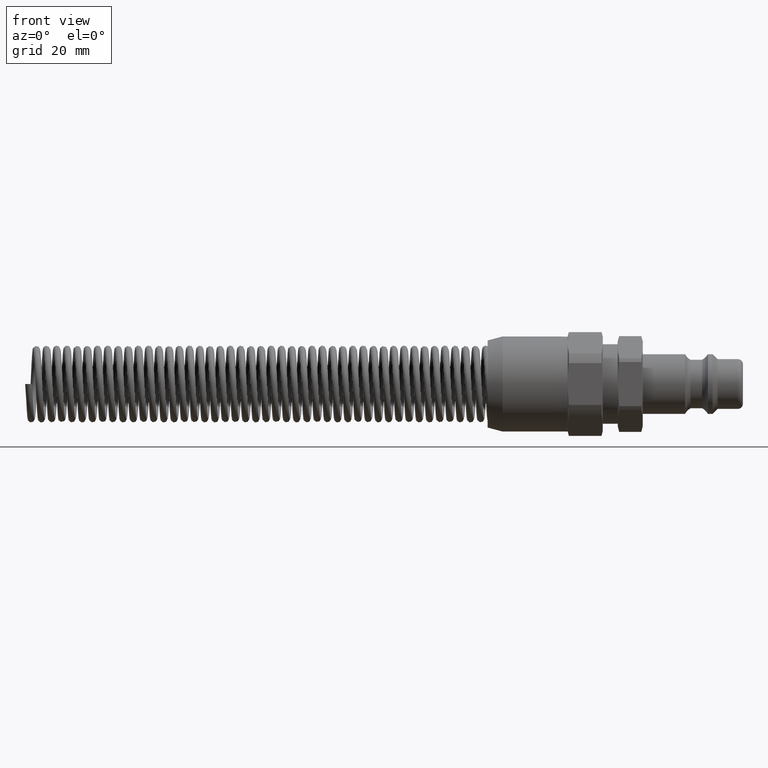
[diagram: clean part render]
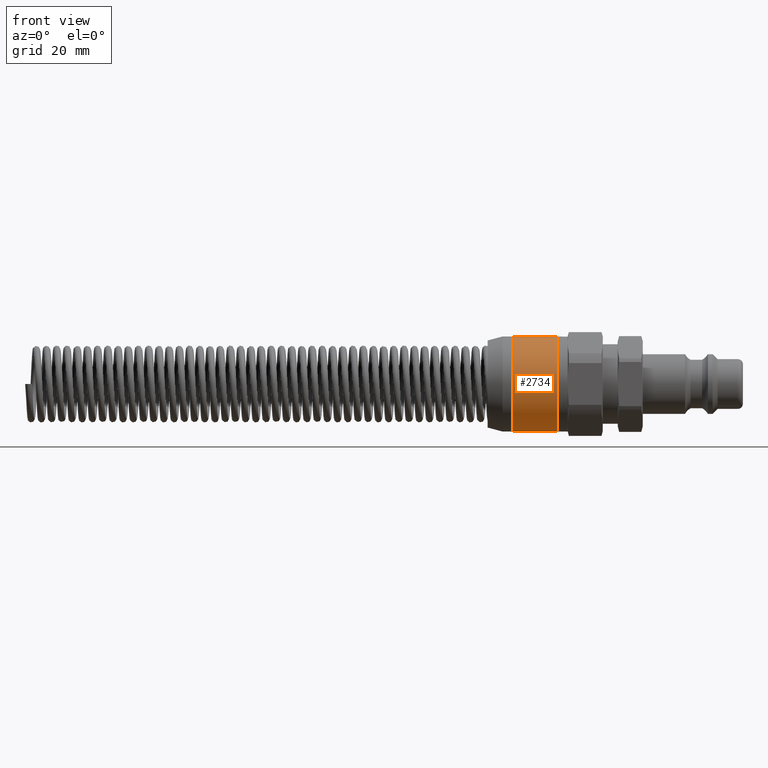
[diagram: same view with one face highlighted and labeled with its STEP entity id]
A machine part, front view. The second image highlights one B-rep face of the part: STEP entity #2734.
In plain terms, the highlighted cylindrical surface (bore or boss wall) has radius 9.49 mm, axis along (1, 0, 0).
Its self-contained STEP definition (entity closure, byte-faithful):
#2703=CARTESIAN_POINT('',(5.000000000000001,9.490000000000000,0.0));
#2704=VERTEX_POINT('',#2703);
#2705=CARTESIAN_POINT('',(5.0,0.0,0.0));
#2706=DIRECTION('',(1.0,0.0,0.0));
#2707=DIRECTION('',(0.0,1.0,0.0));
#2708=AXIS2_PLACEMENT_3D('',#2705,#2706,#2707);
#2709=CIRCLE('',#2708,9.490000000000000);
#2710=EDGE_CURVE('',#2704,#2704,#2709,.T.);
#2715=CARTESIAN_POINT('',(9.500000000000002,0.0,0.0));
#2716=DIRECTION('',(1.0,0.0,0.0));
#2717=DIRECTION('',(0.0,1.0,0.0));
#2718=AXIS2_PLACEMENT_3D('',#2715,#2716,#2717);
#2719=CYLINDRICAL_SURFACE('',#2718,9.490000000000000);
#2720=CARTESIAN_POINT('',(14.000000000000002,9.490000000000000,0.0));
#2721=VERTEX_POINT('',#2720);
#2722=CARTESIAN_POINT('',(14.000000000000002,0.0,0.0));
#2723=DIRECTION('',(1.0,0.0,0.0));
#2724=DIRECTION('',(0.0,1.0,0.0));
#2725=AXIS2_PLACEMENT_3D('',#2722,#2723,#2724);
#2726=CIRCLE('',#2725,9.490000000000000);
#2727=EDGE_CURVE('',#2721,#2721,#2726,.T.);
#2728=ORIENTED_EDGE('',*,*,#2727,.F.);
#2729=EDGE_LOOP('',(#2728));
#2730=FACE_OUTER_BOUND('',#2729,.T.);
#2731=ORIENTED_EDGE('',*,*,#2710,.T.);
#2732=EDGE_LOOP('',(#2731));
#2733=FACE_BOUND('',#2732,.T.);
#2734=ADVANCED_FACE('',(#2730,#2733),#2719,.T.);